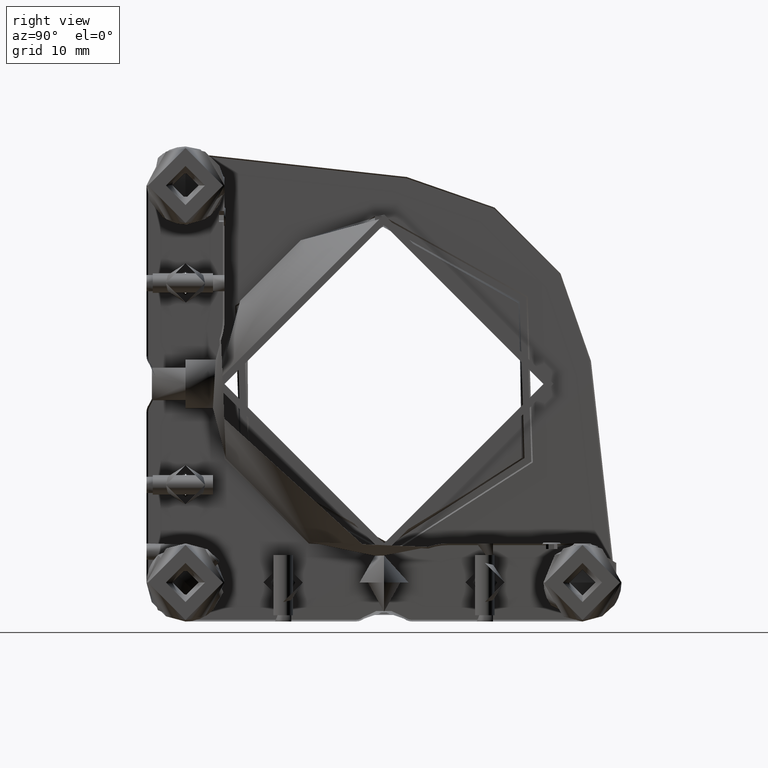
[diagram: clean part render]
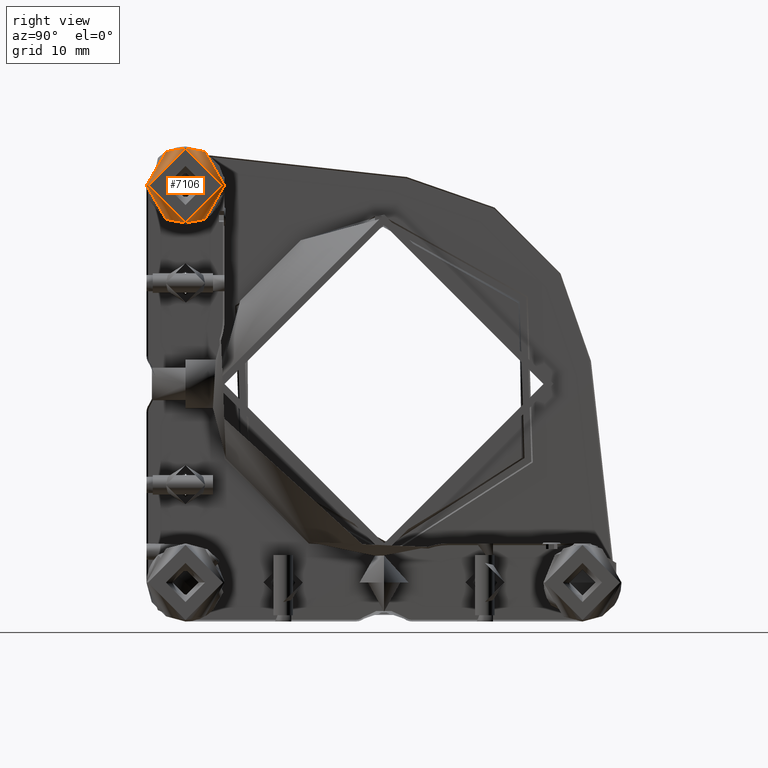
[diagram: same view with one face highlighted and labeled with its STEP entity id]
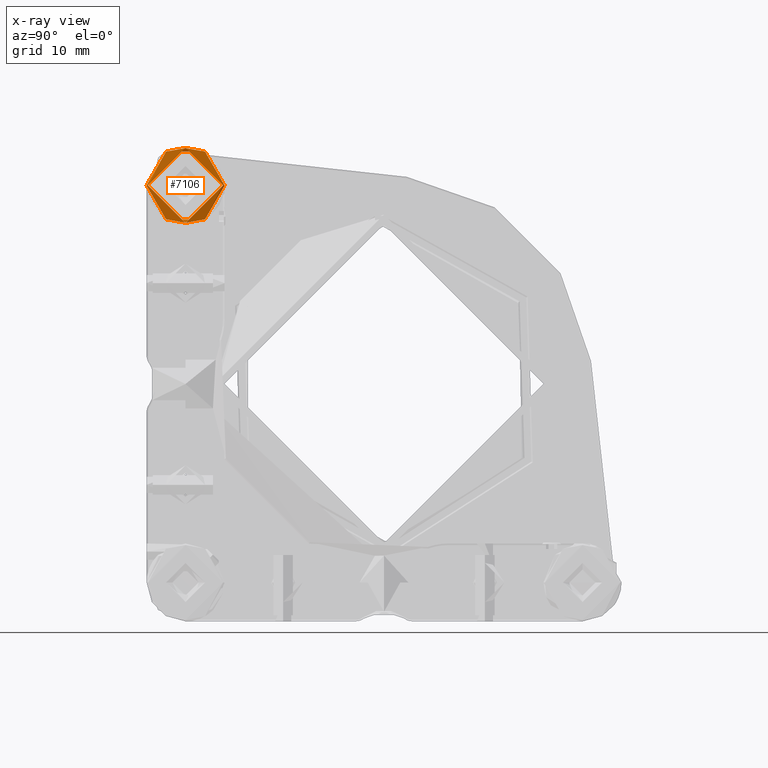
[diagram: x-ray of the same camera — body ghosted, the highlighted face saturated]
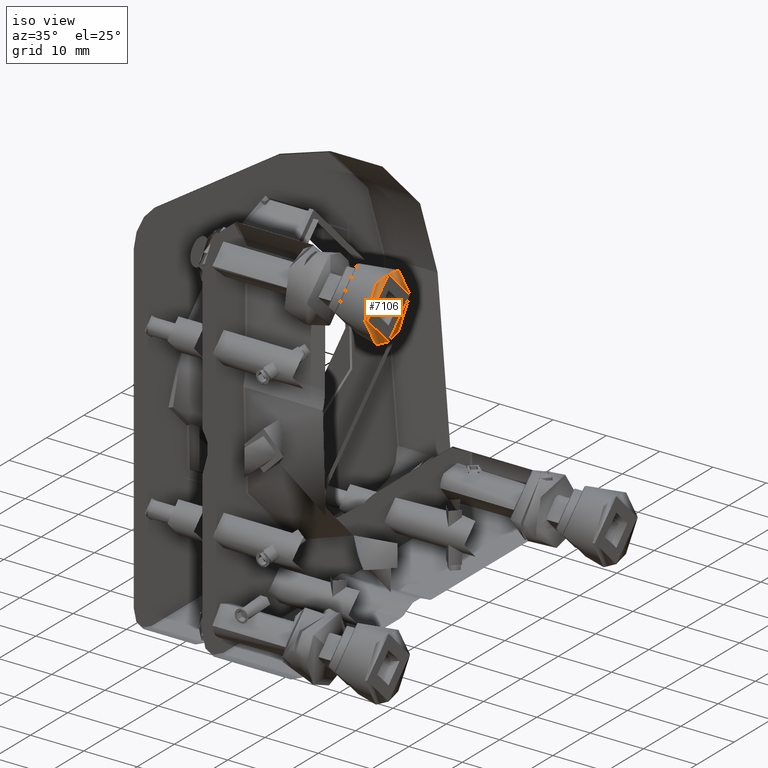
[diagram: same view with one face highlighted and labeled with its STEP entity id]
A machine part, right view. The second image highlights one B-rep face of the part: STEP entity #7106.
The next image is the same camera in x-ray: the body ghosted, the highlighted face saturated — about 0% of this face is hidden behind the body in this view.
A second angle (iso view) of the same face is appended — the face is thin or edge-on in the first view.
In plain terms, the highlighted conical surface has half-angle 45 deg.
Its self-contained STEP definition (entity closure, byte-faithful):
#758 = VERTEX_POINT ( 'NONE', #19780 ) ;
#2003 = CARTESIAN_POINT ( 'NONE',  ( 30.20623492657793818, -31.81707137695276444, 82.50000000000025580 ) ) ;
#2183 = AXIS2_PLACEMENT_3D ( 'NONE', #2003, #14744, #11296 ) ;
#2463 = DIRECTION ( 'NONE',  ( -2.312964634678734397E-15, -1.000000000000000000, 0.000000000000000000 ) ) ;
#2869 = EDGE_CURVE ( 'NONE', #758, #758, #11186, .T. ) ;
#3918 = FACE_BOUND ( 'NONE', #14887, .T. ) ;
#5524 = CARTESIAN_POINT ( 'NONE',  ( 30.45623492670300436, -37.56707137688771070, 82.50000000000021316 ) ) ;
#7106 = ADVANCED_FACE ( 'NONE', ( #13422, #3918 ), #14471, .T. ) ;
#8414 = CARTESIAN_POINT ( 'NONE',  ( 30.20623492670891608, -31.81707137695280352, 82.50000000000021316 ) ) ;
#9103 = CIRCLE ( 'NONE', #19450, 5.749999999934904515 ) ;
#10351 = CARTESIAN_POINT ( 'NONE',  ( 30.45623492670301857, -31.81707137695280352, 82.50000000000021316 ) ) ;
#11124 = AXIS2_PLACEMENT_3D ( 'NONE', #8414, #14895, #2463 ) ;
#11172 = EDGE_LOOP ( 'NONE', ( #12596 ) ) ;
#11186 = CIRCLE ( 'NONE', #2183, 6.000000000000029310 ) ;
#11296 = DIRECTION ( 'NONE',  ( 2.312964634635731617E-15, 1.000000000000000000, 0.000000000000000000 ) ) ;
#12596 = ORIENTED_EDGE ( 'NONE', *, *, #2869, .F. ) ;
#13150 = VERTEX_POINT ( 'NONE', #5524 ) ;
#13387 = DIRECTION ( 'NONE',  ( -1.000000000000000000, 2.177664687940985782E-15, -7.794754057502086298E-16 ) ) ;
#13422 = FACE_OUTER_BOUND ( 'NONE', #11172, .T. ) ;
#14247 = EDGE_CURVE ( 'NONE', #13150, #13150, #9103, .T. ) ;
#14471 = CONICAL_SURFACE ( 'NONE', #11124, 5.999999999888476765, 0.7853981633163933385 ) ;
#14578 = ORIENTED_EDGE ( 'NONE', *, *, #14247, .T. ) ;
#14744 = DIRECTION ( 'NONE',  ( -1.000000000000000000, 2.059247184373890367E-15, -7.346250948048878408E-16 ) ) ;
#14887 = EDGE_LOOP ( 'NONE', ( #14578 ) ) ;
#14895 = DIRECTION ( 'NONE',  ( -1.000000000000000000, 2.177664687940985782E-15, -7.794754057502086298E-16 ) ) ;
#16737 = DIRECTION ( 'NONE',  ( -2.413528314429837668E-15, -1.000000000000000000, 0.000000000000000000 ) ) ;
#19450 = AXIS2_PLACEMENT_3D ( 'NONE', #10351, #13387, #16737 ) ;
#19780 = CARTESIAN_POINT ( 'NONE',  ( 30.20623492657795239, -25.81707137695273246, 82.50000000000025580 ) ) ;